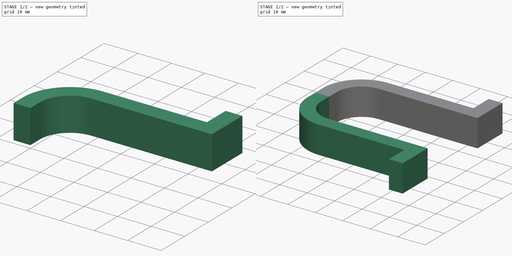
[diagram: build sequence overview — one tinted view per stage of 2, left to right]
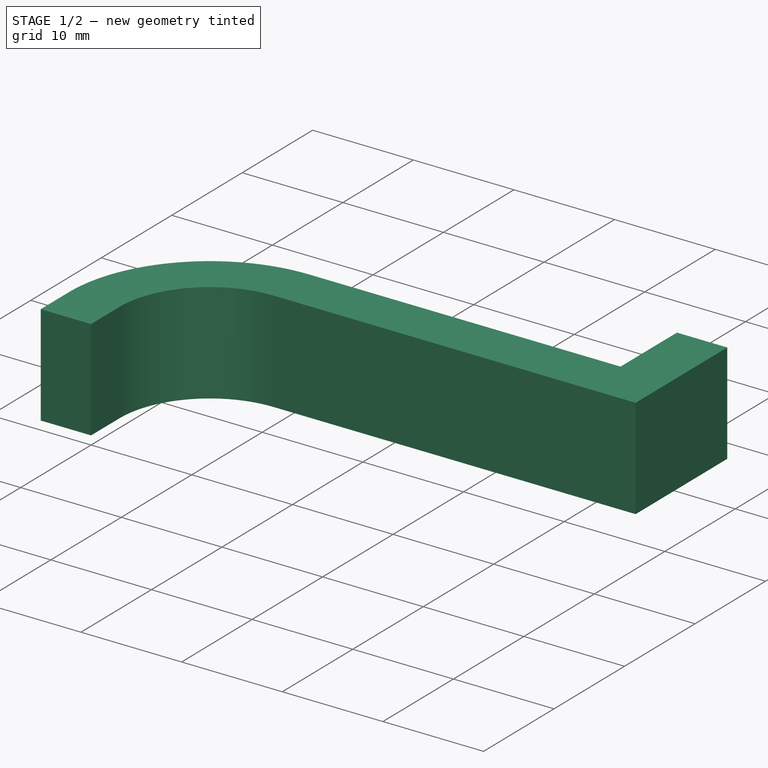
[diagram: stage 1 of 2 — iso view after this stage's code; geometry added in this stage tinted green]
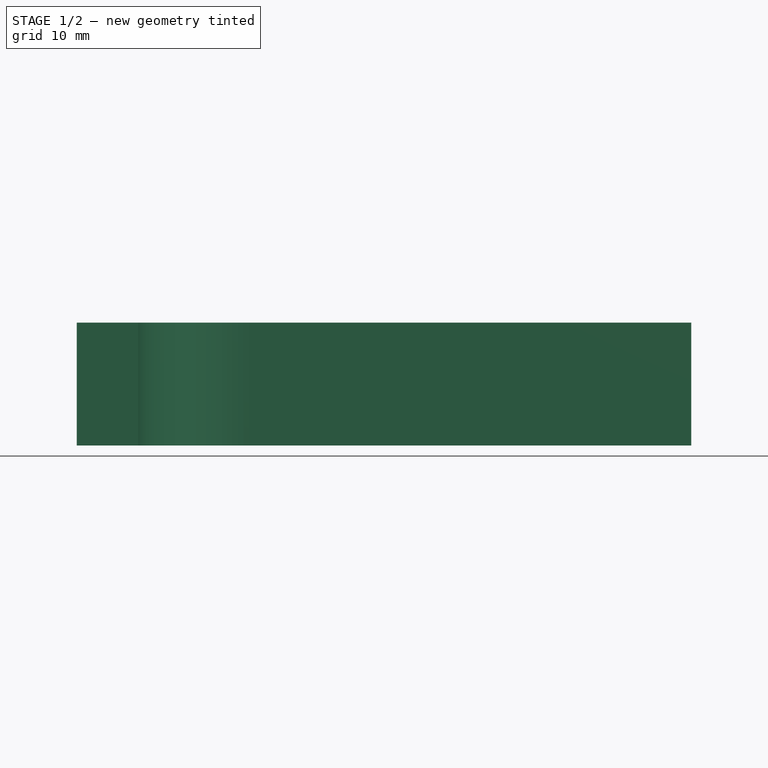
[diagram: stage 1 of 2 — front view after this stage's code; geometry added in this stage tinted green]
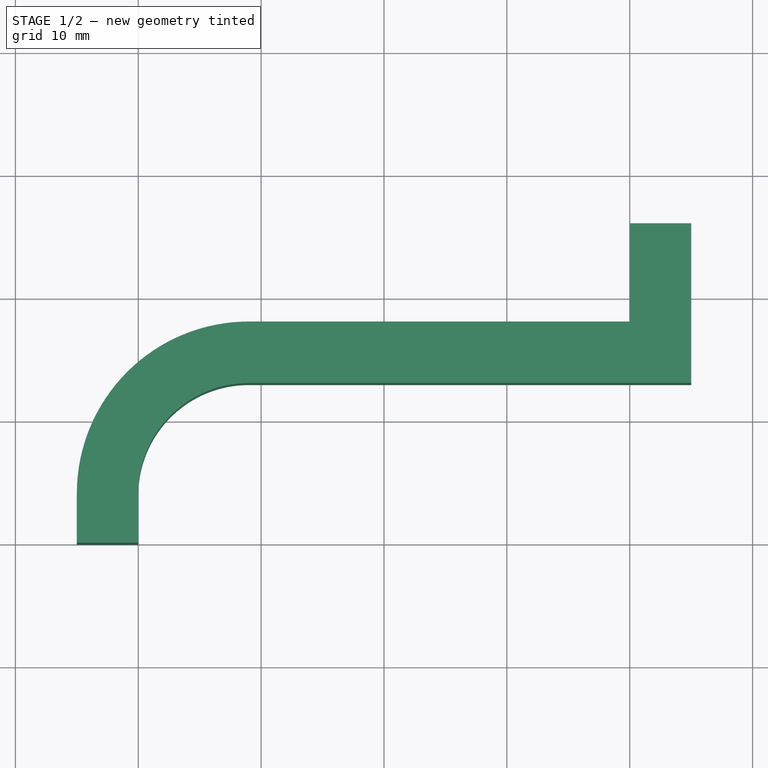
[diagram: stage 1 of 2 — top view after this stage's code; geometry added in this stage tinted green]
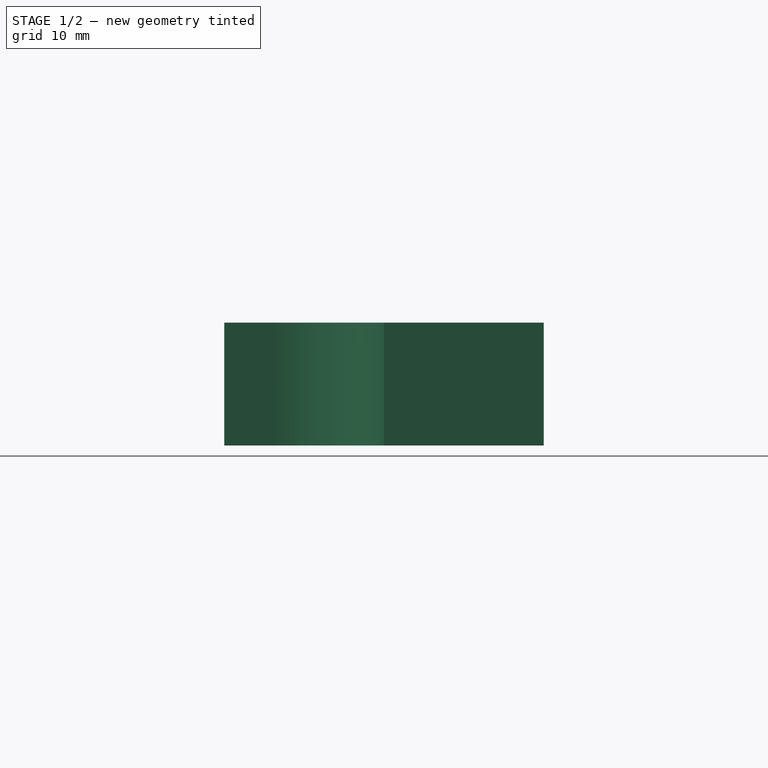
[diagram: stage 1 of 2 — right view after this stage's code; geometry added in this stage tinted green]
FCSTD DOCUMENT  (FreeCAD 0.18R16146 (Git))
Label: sliding-door-thingy
License: All rights reserved
LicenseURL: http://en.wikipedia.org/wiki/All_rights_reserved
objects: Sketcher::SketchObject×1, PartDesign::Pad×1, PartDesign::Mirrored×1, PartDesign::Body×1
note: 5 computed .brp shape members not serialized (recipe doc carries the construction recipe); baked Part::Feature solids carry a one-line shape summary decoded from their .brp

FEATURE [Sketcher::SketchObject] Sketch
  MapMode = 5
  Support = -> [XY_Plane]
  sketch-geometry (11):
    g0: LineSegment StartX=45 StartY=26 StartZ=0 EndX=40 EndY=26 EndZ=0
    g1: LineSegment StartX=40 StartY=26 StartZ=0 EndX=40 EndY=18 EndZ=0
    g2: LineSegment StartX=40 StartY=18 StartZ=0 EndX=9 EndY=18 EndZ=0
    g3: LineSegment StartX=-5 StartY=4 StartZ=0 EndX=-5 EndY=0 EndZ=0
    g4: LineSegment StartX=-5 StartY=0 StartZ=0 EndX=0 EndY=0 EndZ=0
    g5: LineSegment StartX=0 StartY=0 StartZ=0 EndX=0 EndY=4 EndZ=0
    g6: LineSegment StartX=9 StartY=13 StartZ=0 EndX=45 EndY=13 EndZ=0
    g7: LineSegment StartX=45 StartY=13 StartZ=0 EndX=45 EndY=26 EndZ=0
    g8: ArcOfCircle CenterX=9 CenterY=4 CenterZ=0 NormalX=0 NormalY=0 NormalZ=1 AngleXU=0 Radius=14 StartAngle=1.5708 EndAngle=3.14159
    g9: ArcOfCircle CenterX=9 CenterY=4 CenterZ=0 NormalX=0 NormalY=0 NormalZ=1 AngleXU=0 Radius=9 StartAngle=1.5708 EndAngle=3.14159
    g10: GeomPoint X=0 Y=0 Z=0
  constraints (26):
    c: Horizontal(g0)
    c: Coincident(g1,g0)
    c: Vertical(g1)
    c: Coincident(g2,g1)
    c: Horizontal(g2)
    c: PointOnObject(g3,g-1)
    c: Vertical(g3)
    c: Coincident(g4,g3)
    c: Vertical(g5)
    c: Horizontal(g6)
    c: Coincident(g7,g6)
    c: Coincident(g7,g0)
    c: Vertical(g7)
    c: Tangent(g2,g8) = -1.5708
    c: Tangent(g3,g8) = -1.5708
    c: Tangent(g6,g9) = 1.5708
    c: Tangent(g5,g9) = 1.5708
    c: Coincident(g5,g4)
    c: DistanceY(g1,g1) = 8
    c: Coincident(g10,g-1)
    c: DistanceX(g0,g0) = 5
    c: DistanceX(g3,g6) = 50
    c: DistanceX(g3,g4) = 5
    c: Coincident(g10,g4)
    c: DistanceY(g4,g1) = 18
    c: DistanceY(g6,g1) = 5
FEATURE [PartDesign::Pad] Pad
  Length = 10
  Length2 = 100
  Profile = -> Sketch
  Type = 0
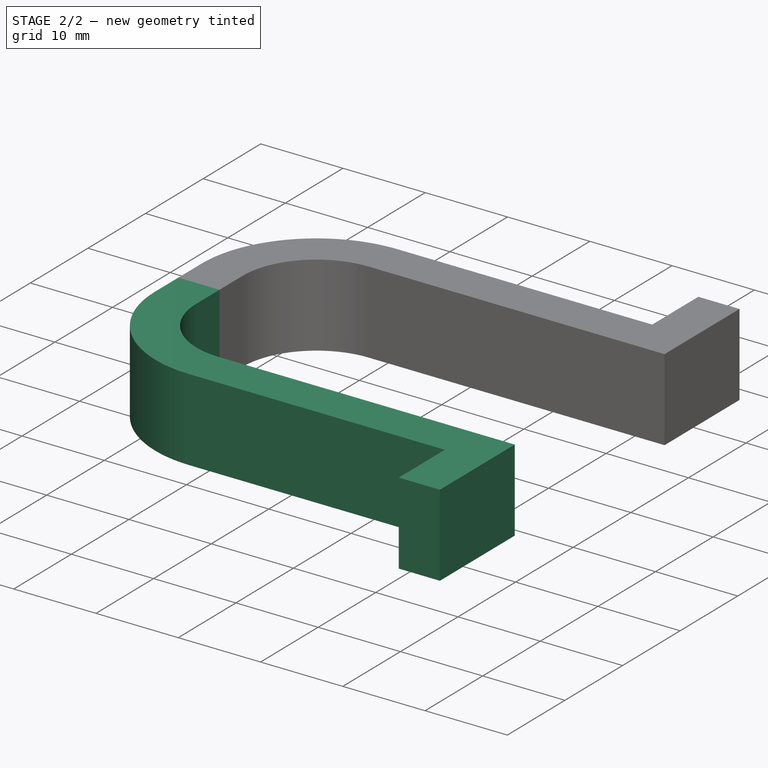
[diagram: stage 2 of 2 — iso view after this stage's code; geometry added in this stage tinted green]
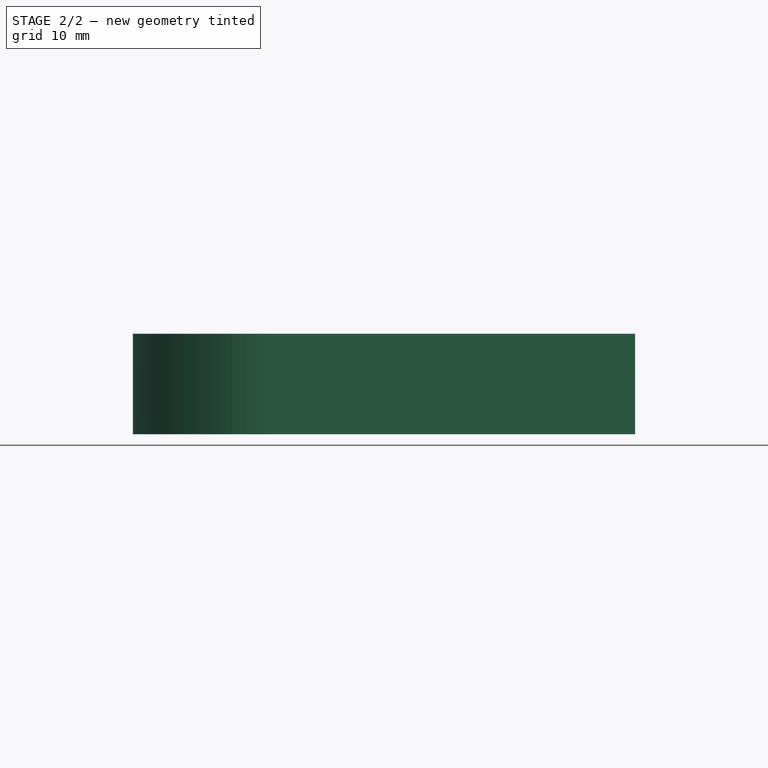
[diagram: stage 2 of 2 — front view after this stage's code; geometry added in this stage tinted green]
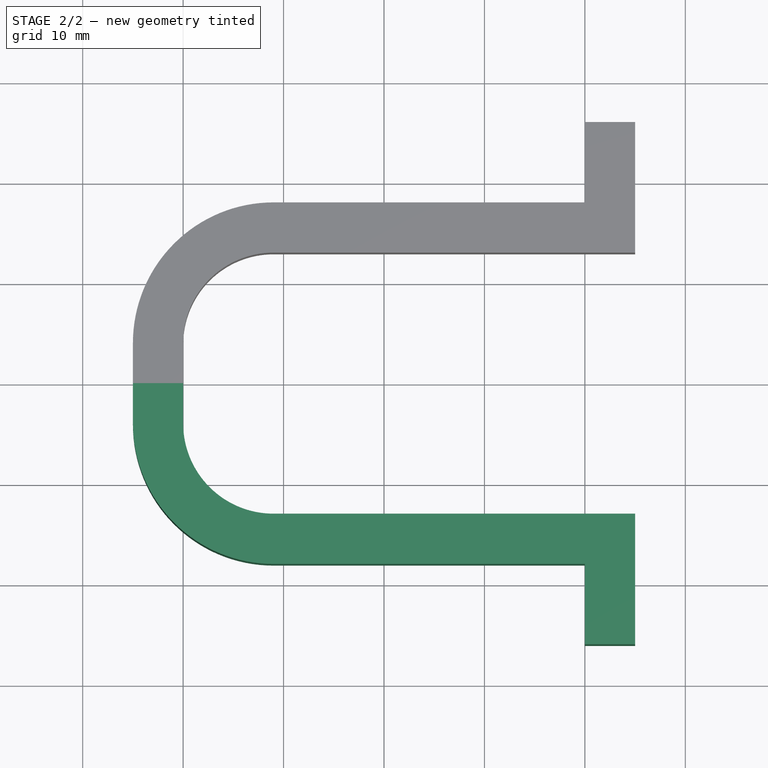
[diagram: stage 2 of 2 — top view after this stage's code; geometry added in this stage tinted green]
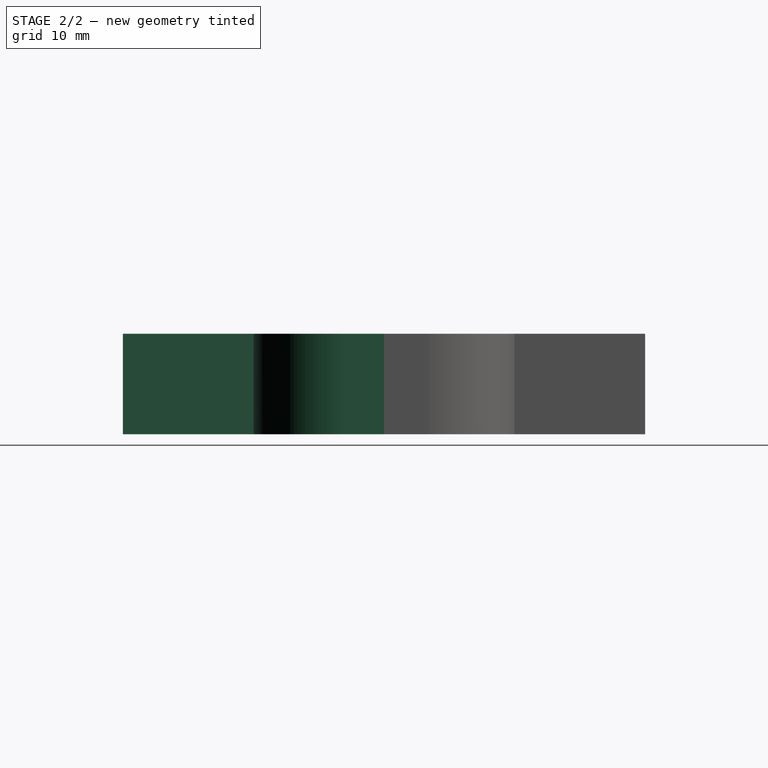
[diagram: stage 2 of 2 — right view after this stage's code; geometry added in this stage tinted green]
FEATURE [PartDesign::Mirrored] Mirrored
  BaseFeature = -> Pad
  MirrorPlane = -> Sketch [H_Axis]
  Originals = -> [Pad]
FEATURE [PartDesign::Body] Body
  Group = -> [Sketch,Pad,Mirrored]
  Origin = -> Origin
  Tip = -> Mirrored
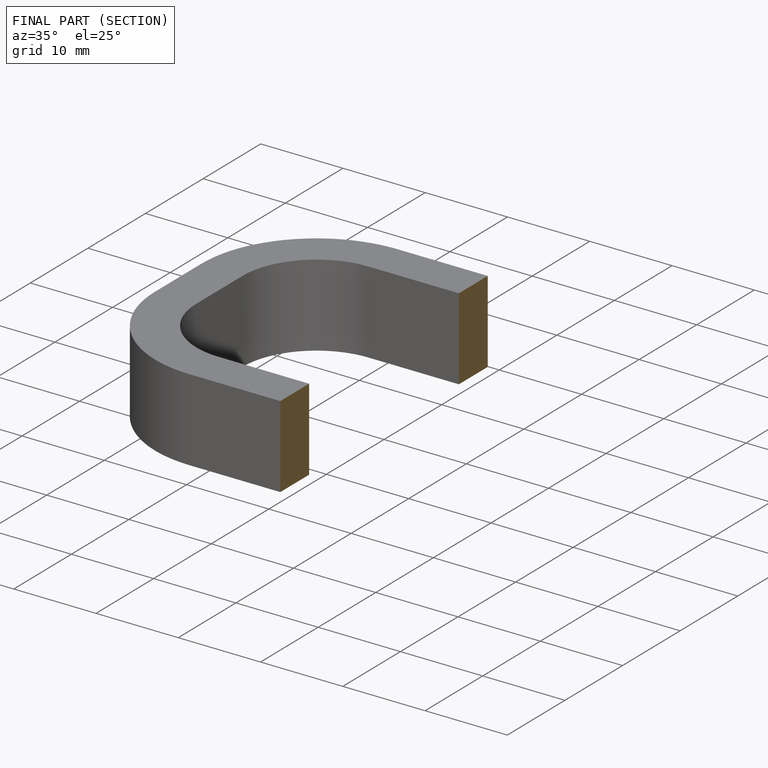
[diagram: finished part — half-section view (interior)]
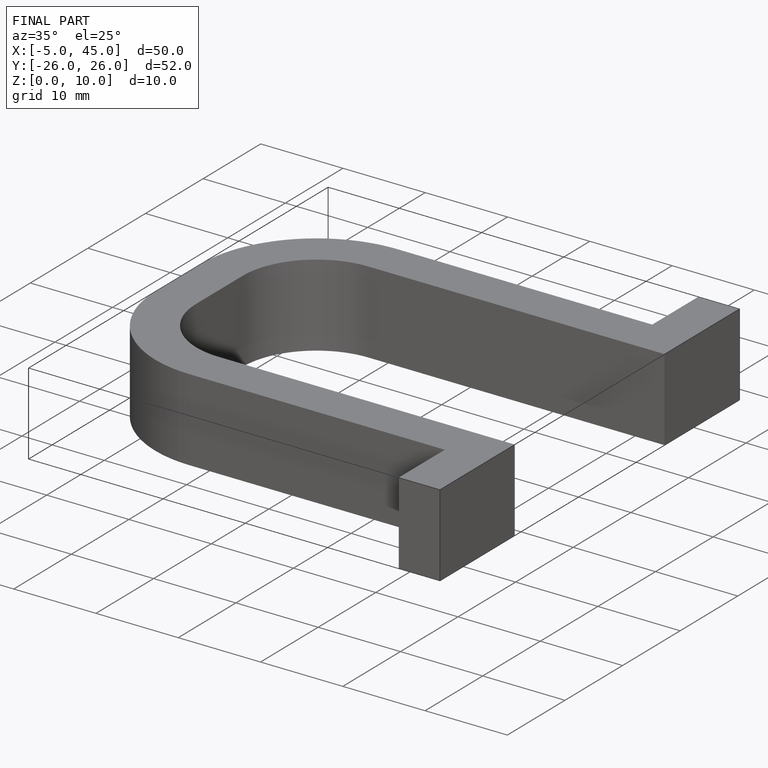
[diagram: finished part — iso view with bounding-box wireframe]
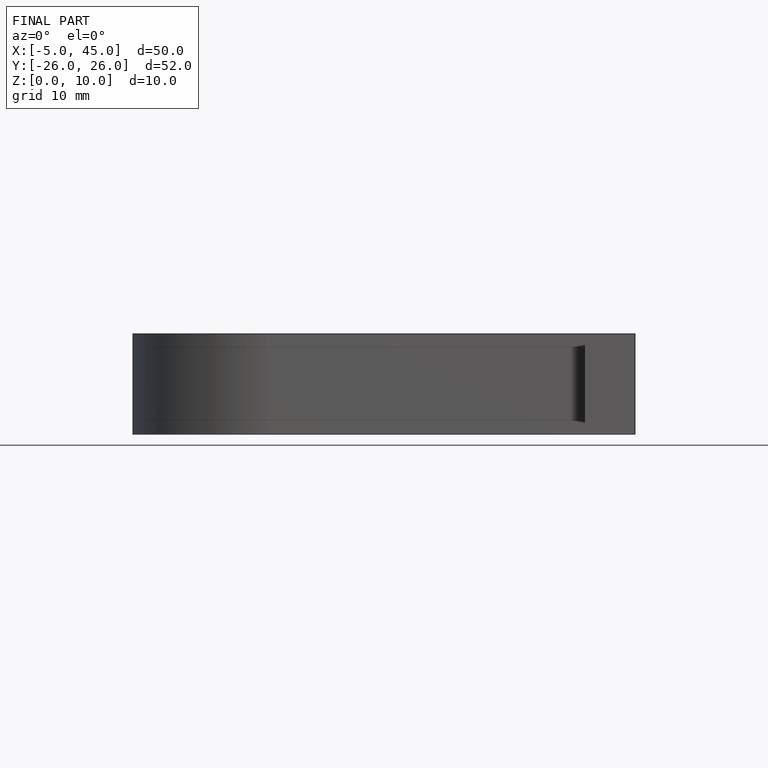
[diagram: finished part — front view with bounding-box wireframe]
